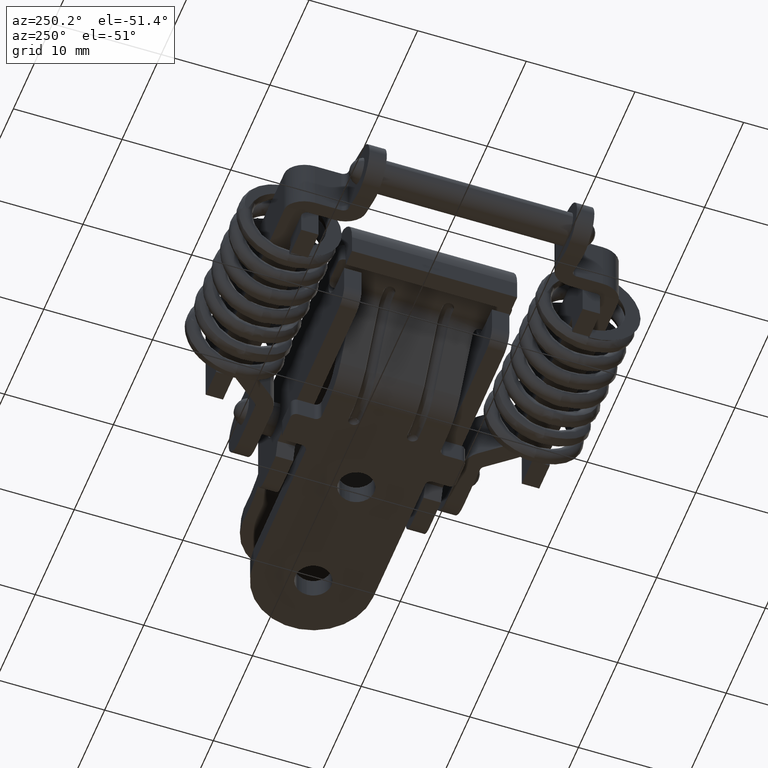
[diagram: clean part render]
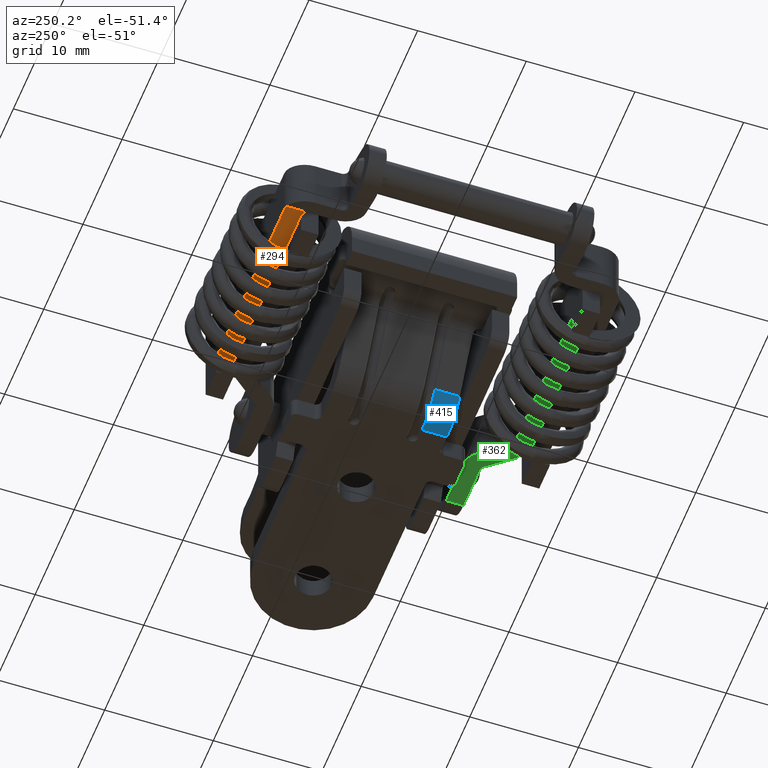
[diagram: same view with three faces highlighted in distinct colors, each labeled with its STEP entity id]
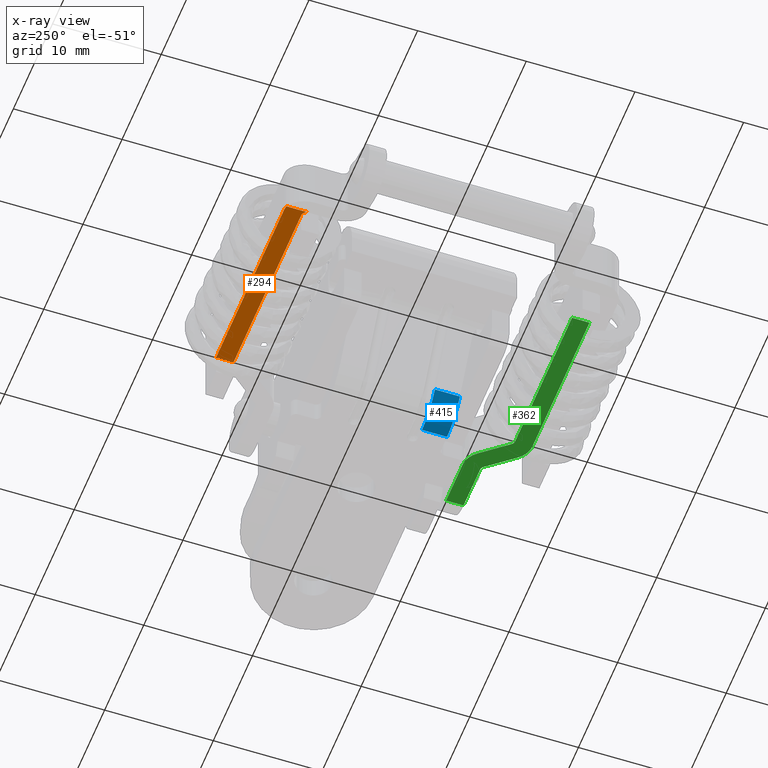
[diagram: x-ray of the same camera — body ghosted, the three highlighted faces saturated]
A machine part, auxiliary view with three faces highlighted in distinct colors.
The next image is the same camera in x-ray (body ghosted, the three faces saturated) — at least one of them is partly hidden behind the body in this view.
Their STEP definitions:

[orange] entity #294 — the highlighted planar face has unit normal (-0, 0, 1).
#294=ADVANCED_FACE('',(#1179),#1178,.F.);
#1178=PLANE('',#7369);
#1179=FACE_OUTER_BOUND('',#7370,.T.);
#7366=CARTESIAN_POINT('',(1.30400000000E+01,2.49999999998E+00,2.62800000000E+01));
#7367=DIRECTION('',(0.00000000000E+00,-1.00000000000E+00,1.11770280141E-12));
#7368=DIRECTION('',(0.00000000000E+00,-1.11770280141E-12,-1.00000000000E+00));
#7369=AXIS2_PLACEMENT_3D('',#7366,#7367,#7368);
#7370=EDGE_LOOP('',(#9492,#9493,#9494,#9495,#9496,#9497));
#9492=ORIENTED_EDGE('',*,*,#10975,.T.);
#9493=ORIENTED_EDGE('',*,*,#10976,.T.);
#9494=ORIENTED_EDGE('',*,*,#10977,.T.);
#9495=ORIENTED_EDGE('',*,*,#10978,.F.);
#9496=ORIENTED_EDGE('',*,*,#10979,.F.);
#9497=ORIENTED_EDGE('',*,*,#10980,.T.);
#10975=EDGE_CURVE('',#12531,#12532,#12533,.T.);
#10976=EDGE_CURVE('',#12532,#12539,#12540,.T.);
#10977=EDGE_CURVE('',#12539,#12546,#12547,.T.);
#10978=EDGE_CURVE('',#12553,#12546,#12554,.T.);
#10979=EDGE_CURVE('',#12560,#12553,#12561,.T.);
#10980=EDGE_CURVE('',#12560,#12531,#12567,.T.);
#12531=VERTEX_POINT('',#18208);
#12532=VERTEX_POINT('',#18209);
#12533=LINE('',#18210,#18211);
#12539=VERTEX_POINT('',#18213);
#12540=CIRCLE('',#18217,2.10000000000E+00);
#12546=VERTEX_POINT('',#18218);
#12547=LINE('',#18219,#18220);
#12553=VERTEX_POINT('',#18222);
#12554=LINE('',#18223,#18224);
#12560=VERTEX_POINT('',#18226);
#12561=LINE('',#18227,#18228);
#12567=CIRCLE('',#18233,5.00000000000E-01);
#18208=CARTESIAN_POINT('',(1.32500000000E+01,2.49999999998E+00,2.45000000000E+01));
#18209=CARTESIAN_POINT('',(1.52896078054E+01,2.49999999998E+00,2.45000000000E+01));
#18210=CARTESIAN_POINT('',(1.32500000000E+01,2.49999999998E+00,2.45000000000E+01));
#18211=VECTOR('',#18212,2.03960780540E+00);
#18212=DIRECTION('',(1.00000000000E+00,0.00000000000E+00,0.00000000000E+00));
#18213=CARTESIAN_POINT('',(1.53500000000E+01,2.49999999998E+00,2.40000000000E+01));
#18214=CARTESIAN_POINT('',(1.32500000000E+01,2.49999999998E+00,2.40000000000E+01));
#18215=DIRECTION('',(8.65675759196E-17,1.00000000000E+00,-1.11768157979E-12));
#18216=DIRECTION('',(-9.71241812112E-01,-2.66030583810E-13,-2.38095238099E-01));
#18217=AXIS2_PLACEMENT_3D('',#18214,#18215,#18216);
#18218=CARTESIAN_POINT('',(1.53500000000E+01,2.49999999996E+00,6.69999999995E+00));
#18219=CARTESIAN_POINT('',(1.53500000000E+01,2.49999999998E+00,2.40000000000E+01));
#18220=VECTOR('',#18221,1.73000000000E+01);
#18221=DIRECTION('',(0.00000000000E+00,-1.15606945981E-12,-1.00000000000E+00));
#18222=CARTESIAN_POINT('',(1.37500000000E+01,2.49999999996E+00,6.69999999995E+00));
#18223=CARTESIAN_POINT('',(1.37500000000E+01,2.49999999996E+00,6.69999999995E+00));
#18224=VECTOR('',#18225,1.60000000000E+00);
#18225=DIRECTION('',(1.00000000000E+00,0.00000000000E+00,0.00000000000E+00));
#18226=CARTESIAN_POINT('',(1.37500000000E+01,2.49999999998E+00,2.40000000000E+01));
#18227=CARTESIAN_POINT('',(1.37500000000E+01,2.49999999998E+00,2.40000000000E+01));
#18228=VECTOR('',#18229,1.73000000000E+01);
#18229=DIRECTION('',(0.00000000000E+00,-1.15606945981E-12,-1.00000000000E+00));
#18230=CARTESIAN_POINT('',(1.32500000000E+01,2.49999999998E+00,2.40000000000E+01));
#18231=DIRECTION('',(0.00000000000E+00,-1.00000000000E+00,1.11770280141E-12));
#18232=DIRECTION('',(-1.00000000000E+00,-0.00000000000E+00,-0.00000000000E+00));
#18233=AXIS2_PLACEMENT_3D('',#18230,#18231,#18232);

[blue] entity #415 — the highlighted cylindrical surface (partial cylindrical patch) has radius 4 mm, axis along (0, 1, 0).
#415=ADVANCED_FACE('',(#2396),#2395,.T.);
#2395=CYLINDRICAL_SURFACE('',#8273,4.00000000000E+00);
#2396=FACE_OUTER_BOUND('',#8274,.T.);
#8270=CARTESIAN_POINT('',(-7.79999999998E+00,3.25000000000E+00,-2.00000000000E+00));
#8271=DIRECTION('',(-0.00000000000E+00,1.00000000000E+00,0.00000000000E+00));
#8272=DIRECTION('',(8.23701110453E-01,-0.00000000000E+00,5.67024232849E-01));
#8273=AXIS2_PLACEMENT_3D('',#8270,#8271,#8272);
#8274=EDGE_LOOP('',(#10083,#10084,#10085,#10086));
#10083=ORIENTED_EDGE('',*,*,#11309,.T.);
#10084=ORIENTED_EDGE('',*,*,#11310,.T.);
#10085=ORIENTED_EDGE('',*,*,#11311,.F.);
#10086=ORIENTED_EDGE('',*,*,#11305,.F.);
#11305=EDGE_CURVE('',#14732,#14739,#14740,.T.);
#11309=EDGE_CURVE('',#14732,#14766,#14767,.T.);
#11310=EDGE_CURVE('',#14766,#14773,#14774,.T.);
#11311=EDGE_CURVE('',#14739,#14773,#14780,.T.);
#14732=VERTEX_POINT('',#19554);
#14739=VERTEX_POINT('',#19558);
#14740=LINE('',#19559,#19560);
#14766=VERTEX_POINT('',#19574);
#14767=CIRCLE('',#19578,4.00000000000E+00);
#14773=VERTEX_POINT('',#19579);
#14774=LINE('',#19580,#19581);
#14780=CIRCLE('',#19586,4.00000000000E+00);
#19554=CARTESIAN_POINT('',(-1.10948044418E+01,4.40000000051E+00,-4.26809693141E+00));
#19558=CARTESIAN_POINT('',(-1.10948044418E+01,2.10000000023E+00,-4.26809693141E+00));
#19559=CARTESIAN_POINT('',(-1.10948044418E+01,4.40000000051E+00,-4.26809693141E+00));
#19560=VECTOR('',#19561,2.30000000028E+00);
#19561=DIRECTION('',(0.00000000000E+00,-1.00000000000E+00,0.00000000000E+00));
#19574=CARTESIAN_POINT('',(-7.79999999998E+00,4.40000000051E+00,-6.00000000000E+00));
#19575=CARTESIAN_POINT('',(-7.79999999998E+00,4.40000000051E+00,-2.00000000000E+00));
#19576=DIRECTION('',(0.00000000000E+00,-1.00000000000E+00,-0.00000000000E+00));
#19577=DIRECTION('',(8.23701110452E-01,-0.00000000000E+00,5.67024232851E-01));
#19578=AXIS2_PLACEMENT_3D('',#19575,#19576,#19577);
#19579=CARTESIAN_POINT('',(-7.79999999998E+00,2.10000000022E+00,-6.00000000000E+00));
#19580=CARTESIAN_POINT('',(-7.79999999998E+00,4.40000000051E+00,-6.00000000000E+00));
#19581=VECTOR('',#19582,2.30000000029E+00);
#19582=DIRECTION('',(0.00000000000E+00,-1.00000000000E+00,0.00000000000E+00));
#19583=CARTESIAN_POINT('',(-7.79999999998E+00,2.10000000022E+00,-2.00000000000E+00));
#19584=DIRECTION('',(-3.33956010288E-12,-1.00000000000E+00,-3.93177110000E-19));
#19585=DIRECTION('',(8.23701110452E-01,-2.75079958810E-12,5.67024232851E-01));
#19586=AXIS2_PLACEMENT_3D('',#19583,#19584,#19585);

[green] entity #362 — the highlighted planar face has unit normal (0, 0, -1).
#362=ADVANCED_FACE('',(#1864),#1863,.T.);
#1863=PLANE('',#7714);
#1864=FACE_OUTER_BOUND('',#7715,.T.);
#7711=CARTESIAN_POINT('',(-1.42500000000E+01,2.54999999997E+00,-3.72500000002E+00));
#7712=DIRECTION('',(0.00000000000E+00,1.00000000000E+00,0.00000000000E+00));
#7713=DIRECTION('',(-0.00000000000E+00,0.00000000000E+00,1.00000000000E+00));
#7714=AXIS2_PLACEMENT_3D('',#7711,#7712,#7713);
#7715=EDGE_LOOP('',(#9850,#9851,#9852,#9853,#9854,#9855,#9856,#9857,#9858,#9859,#9860,#9861));
#9850=ORIENTED_EDGE('',*,*,#11165,.T.);
#9851=ORIENTED_EDGE('',*,*,#11166,.F.);
#9852=ORIENTED_EDGE('',*,*,#11167,.T.);
#9853=ORIENTED_EDGE('',*,*,#11163,.T.);
#9854=ORIENTED_EDGE('',*,*,#11155,.T.);
#9855=ORIENTED_EDGE('',*,*,#11168,.F.);
#9856=ORIENTED_EDGE('',*,*,#11146,.T.);
#9857=ORIENTED_EDGE('',*,*,#11143,.F.);
#9858=ORIENTED_EDGE('',*,*,#11137,.T.);
#9859=ORIENTED_EDGE('',*,*,#11141,.T.);
#9860=ORIENTED_EDGE('',*,*,#11169,.T.);
#9861=ORIENTED_EDGE('',*,*,#11170,.F.);
#11137=EDGE_CURVE('',#13610,#13603,#13611,.T.);
#11141=EDGE_CURVE('',#13603,#13630,#13637,.T.);
#11143=EDGE_CURVE('',#13610,#13650,#13651,.T.);
#11146=EDGE_CURVE('',#13670,#13650,#13671,.T.);
#11155=EDGE_CURVE('',#13731,#13732,#13733,.T.);
#11163=EDGE_CURVE('',#13786,#13731,#13787,.T.);
#11165=EDGE_CURVE('',#13799,#13800,#13801,.T.);
#11166=EDGE_CURVE('',#13807,#13800,#13808,.T.);
#11167=EDGE_CURVE('',#13807,#13786,#13814,.T.);
#11168=EDGE_CURVE('',#13670,#13732,#13820,.T.);
#11169=EDGE_CURVE('',#13630,#13826,#13827,.T.);
#11170=EDGE_CURVE('',#13799,#13826,#13833,.T.);
#13603=VERTEX_POINT('',#18826);
#13610=VERTEX_POINT('',#18830);
#13611=LINE('',#18831,#18832);
#13630=VERTEX_POINT('',#18842);
#13637=CIRCLE('',#18849,2.10000000000E+00);
#13650=VERTEX_POINT('',#18855);
#13651=CIRCLE('',#18859,5.00000000000E-01);
#13670=VERTEX_POINT('',#18867);
#13671=LINE('',#18868,#18869);
#13731=VERTEX_POINT('',#18901);
#13732=VERTEX_POINT('',#18902);
#13733=LINE('',#18903,#18904);
#13786=VERTEX_POINT('',#18933);
#13787=CIRCLE('',#18937,2.10000000000E+00);
#13799=VERTEX_POINT('',#18941);
#13800=VERTEX_POINT('',#18942);
#13801=LINE('',#18943,#18944);
#13807=VERTEX_POINT('',#18946);
#13808=CIRCLE('',#18950,5.00000000000E-01);
#13814=LINE('',#18951,#18952);
#13820=LINE('',#18954,#18955);
#13826=VERTEX_POINT('',#18957);
#13827=LINE('',#18958,#18959);
#13833=LINE('',#18961,#18962);
#18826=CARTESIAN_POINT('',(-9.52542550677E+00,2.54999999997E+00,4.37914945221E+00));
#18830=CARTESIAN_POINT('',(-1.19653748793E+01,2.54999999997E+00,6.36242863203E+00));
#18831=CARTESIAN_POINT('',(-1.19653748793E+01,2.54999999997E+00,6.36242863203E+00));
#18832=VECTOR('',#18833,3.14432015635E+00);
#18833=DIRECTION('',(7.75986302668E-01,0.00000000000E+00,-6.30749758677E-01));
#18842=CARTESIAN_POINT('',(-8.74999999999E+00,2.54999999997E+00,2.74957821660E+00));
#18846=CARTESIAN_POINT('',(-1.08500000000E+01,2.54999999997E+00,2.74957821660E+00));
#18847=DIRECTION('',(-0.00000000000E+00,1.00000000000E+00,0.00000000000E+00));
#18848=DIRECTION('',(-6.30749758678E-01,-0.00000000000E+00,-7.75986302668E-01));
#18849=AXIS2_PLACEMENT_3D('',#18846,#18847,#18848);
#18855=CARTESIAN_POINT('',(-1.21500000000E+01,2.54999999997E+00,6.75042178337E+00));
#18856=CARTESIAN_POINT('',(-1.16500000000E+01,2.54999999997E+00,6.75042178337E+00));
#18857=DIRECTION('',(0.00000000000E+00,1.00000000000E+00,0.00000000000E+00));
#18858=DIRECTION('',(6.30749758625E-01,-0.00000000000E+00,7.75986302711E-01));
#18859=AXIS2_PLACEMENT_3D('',#18856,#18857,#18858);
#18867=CARTESIAN_POINT('',(-1.21500000000E+01,2.54999999997E+00,2.13000000000E+01));
#18868=CARTESIAN_POINT('',(-1.21500000000E+01,2.54999999997E+00,2.13000000000E+01));
#18869=VECTOR('',#18870,1.45495782166E+01);
#18870=DIRECTION('',(0.00000000000E+00,0.00000000000E+00,-1.00000000000E+00));
#18901=CARTESIAN_POINT('',(-1.37500000000E+01,2.54999999997E+00,6.75042178337E+00));
#18902=CARTESIAN_POINT('',(-1.37500000000E+01,2.54999999997E+00,2.13000000000E+01));
#18903=CARTESIAN_POINT('',(-1.37500000000E+01,2.54999999997E+00,6.75042178337E+00));
#18904=VECTOR('',#18905,1.45495782166E+01);
#18905=DIRECTION('',(0.00000000000E+00,0.00000000000E+00,1.00000000000E+00));
#18933=CARTESIAN_POINT('',(-1.29745744932E+01,2.54999999997E+00,5.12085054776E+00));
#18934=CARTESIAN_POINT('',(-1.16500000000E+01,2.54999999997E+00,6.75042178337E+00));
#18935=DIRECTION('',(0.00000000000E+00,1.00000000000E+00,0.00000000000E+00));
#18936=DIRECTION('',(6.30749758669E-01,-0.00000000000E+00,7.75986302675E-01));
#18937=AXIS2_PLACEMENT_3D('',#18934,#18935,#18936);
#18941=CARTESIAN_POINT('',(-1.03500000000E+01,2.54999999997E+00,-1.45000000002E+00));
#18942=CARTESIAN_POINT('',(-1.03500000000E+01,2.54999999997E+00,2.74957821660E+00));
#18943=CARTESIAN_POINT('',(-1.03500000000E+01,2.54999999997E+00,-1.45000000002E+00));
#18944=VECTOR('',#18945,4.19957821662E+00);
#18945=DIRECTION('',(0.00000000000E+00,0.00000000000E+00,1.00000000000E+00));
#18946=CARTESIAN_POINT('',(-1.05346251207E+01,2.54999999997E+00,3.13757136794E+00));
#18947=CARTESIAN_POINT('',(-1.08500000000E+01,2.54999999997E+00,2.74957821660E+00));
#18948=DIRECTION('',(-0.00000000000E+00,1.00000000000E+00,0.00000000000E+00));
#18949=DIRECTION('',(-6.30749758625E-01,-0.00000000000E+00,-7.75986302711E-01));
#18950=AXIS2_PLACEMENT_3D('',#18947,#18948,#18949);
#18951=CARTESIAN_POINT('',(-1.05346251207E+01,2.54999999997E+00,3.13757136794E+00));
#18952=VECTOR('',#18953,3.14432015632E+00);
#18953=DIRECTION('',(-7.75986302665E-01,0.00000000000E+00,6.30749758682E-01));
#18954=CARTESIAN_POINT('',(-1.21500000000E+01,2.54999999997E+00,2.13000000000E+01));
#18955=VECTOR('',#18956,1.60000000000E+00);
#18956=DIRECTION('',(-1.00000000000E+00,0.00000000000E+00,0.00000000000E+00));
#18957=CARTESIAN_POINT('',(-8.74999999999E+00,2.54999999997E+00,-1.45000000002E+00));
#18958=CARTESIAN_POINT('',(-8.74999999999E+00,2.54999999997E+00,2.74957821660E+00));
#18959=VECTOR('',#18960,4.19957821662E+00);
#18960=DIRECTION('',(0.00000000000E+00,0.00000000000E+00,-1.00000000000E+00));
#18961=CARTESIAN_POINT('',(-1.03500000000E+01,2.54999999997E+00,-1.45000000002E+00));
#18962=VECTOR('',#18963,1.60000000001E+00);
#18963=DIRECTION('',(1.00000000000E+00,0.00000000000E+00,0.00000000000E+00));